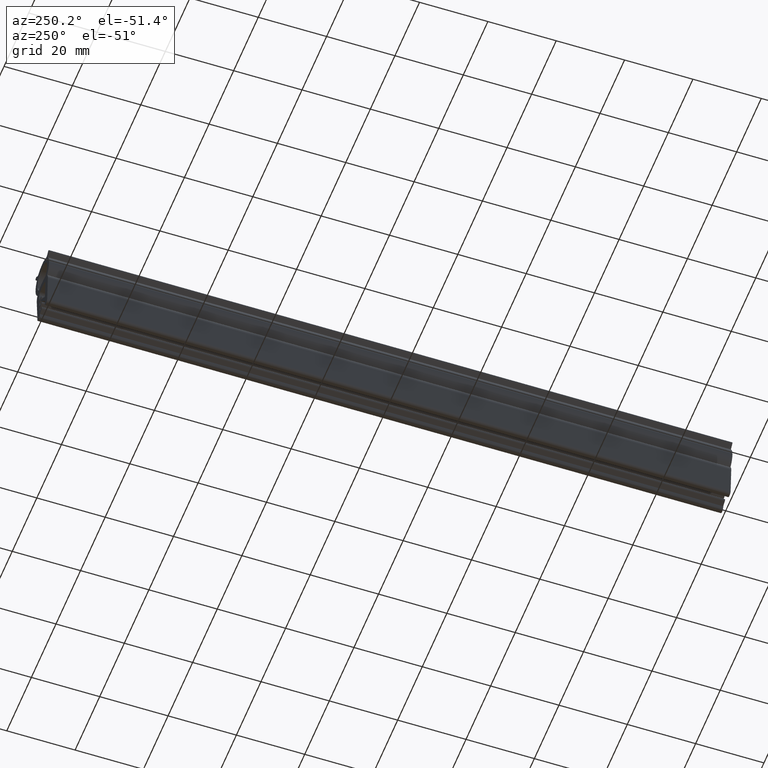
[diagram: clean part render]
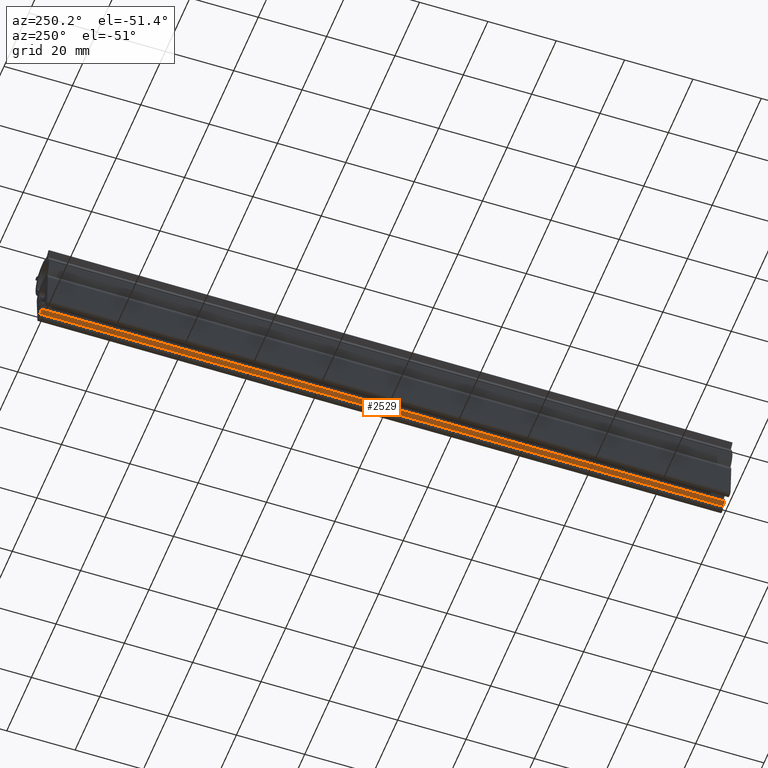
[diagram: same view with one face highlighted and labeled with its STEP entity id]
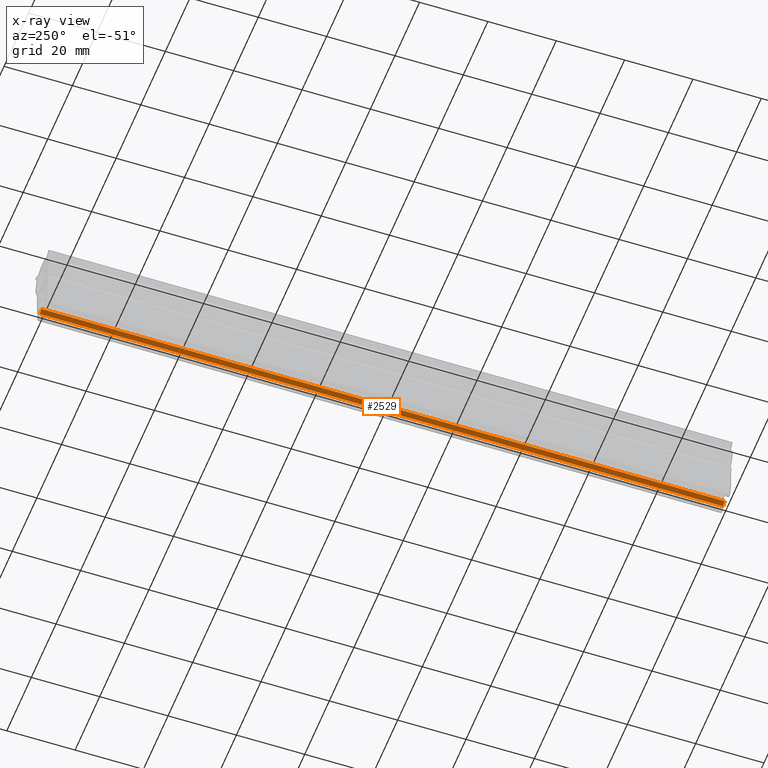
[diagram: x-ray of the same camera — body ghosted, the highlighted face saturated]
A machine part, auxiliary view. The second image highlights one B-rep face of the part: STEP entity #2529.
The next image is the same camera in x-ray: the body ghosted, the highlighted face saturated — about 0% of this face is hidden behind the body in this view.
In plain terms, the highlighted face is a freeform B-spline surface patch.
Its self-contained STEP definition (entity closure, byte-faithful):
#1112=CARTESIAN_POINT('',(0.729677625245699,0.0,-18.958524445412451));
#1113=VERTEX_POINT('',#1112);
#1131=CARTESIAN_POINT('',(2.013950958360740,0.0,-19.700000000000301));
#1132=VERTEX_POINT('',#1131);
#1133=CARTESIAN_POINT('',(2.013950958360740,0.0,-19.700000000000301));
#1134=CARTESIAN_POINT('',(0.729677625245699,0.0,-18.958524445412451));
#1135=QUASI_UNIFORM_CURVE('',1,(#1133,#1134),.UNSPECIFIED.,.F.,.U.);
#1136=EDGE_CURVE('',#1132,#1113,#1135,.T.);
#1420=CARTESIAN_POINT('',(2.013950958360740,200.0,-19.700000000000301));
#1421=VERTEX_POINT('',#1420);
#1427=CARTESIAN_POINT('',(0.729677625245699,200.0,-18.958524445412451));
#1428=VERTEX_POINT('',#1427);
#1429=CARTESIAN_POINT('',(2.013950958360740,200.0,-19.700000000000301));
#1430=CARTESIAN_POINT('',(0.729677625245699,200.0,-18.958524445412451));
#1431=QUASI_UNIFORM_CURVE('',1,(#1429,#1430),.UNSPECIFIED.,.F.,.U.);
#1432=EDGE_CURVE('',#1421,#1428,#1431,.T.);
#2506=CARTESIAN_POINT('',(0.729677625245699,200.0,-18.958524445412451));
#2507=CARTESIAN_POINT('',(0.729677625245699,0.0,-18.958524445412451));
#2508=QUASI_UNIFORM_CURVE('',1,(#2506,#2507),.UNSPECIFIED.,.F.,.U.);
#2509=EDGE_CURVE('',#1428,#1113,#2508,.T.);
#2514=CARTESIAN_POINT('',(0.665528264895020,-9.989999612361183,-18.921487794945602));
#2515=CARTESIAN_POINT('',(2.078100823932578,-9.989999612361183,-19.737036942156649));
#2516=CARTESIAN_POINT('',(0.665528264895020,209.990004976779200,-18.921487794945602));
#2517=CARTESIAN_POINT('',(2.078100823932578,209.990004976779200,-19.737036942156649));
#2518=B_SPLINE_SURFACE_WITH_KNOTS('',1,1,((#2514,#2516),(#2515,#2517)),.UNSPECIFIED.,.F.,.F.,.U.,(2,2),(2,2),(0.041708393444121,0.958291934381425),(0.0,219.980004589140410),.UNSPECIFIED.);
#2519=ORIENTED_EDGE('',*,*,#1136,.T.);
#2520=ORIENTED_EDGE('',*,*,#2509,.F.);
#2521=ORIENTED_EDGE('',*,*,#1432,.F.);
#2522=CARTESIAN_POINT('',(2.013950958360740,200.0,-19.700000000000301));
#2523=CARTESIAN_POINT('',(2.013950958360740,0.0,-19.700000000000301));
#2524=QUASI_UNIFORM_CURVE('',1,(#2522,#2523),.UNSPECIFIED.,.F.,.U.);
#2525=EDGE_CURVE('',#1421,#1132,#2524,.T.);
#2526=ORIENTED_EDGE('',*,*,#2525,.T.);
#2527=EDGE_LOOP('',(#2519,#2520,#2521,#2526));
#2528=FACE_OUTER_BOUND('',#2527,.T.);
#2529=ADVANCED_FACE('',(#2528),#2518,.F.);